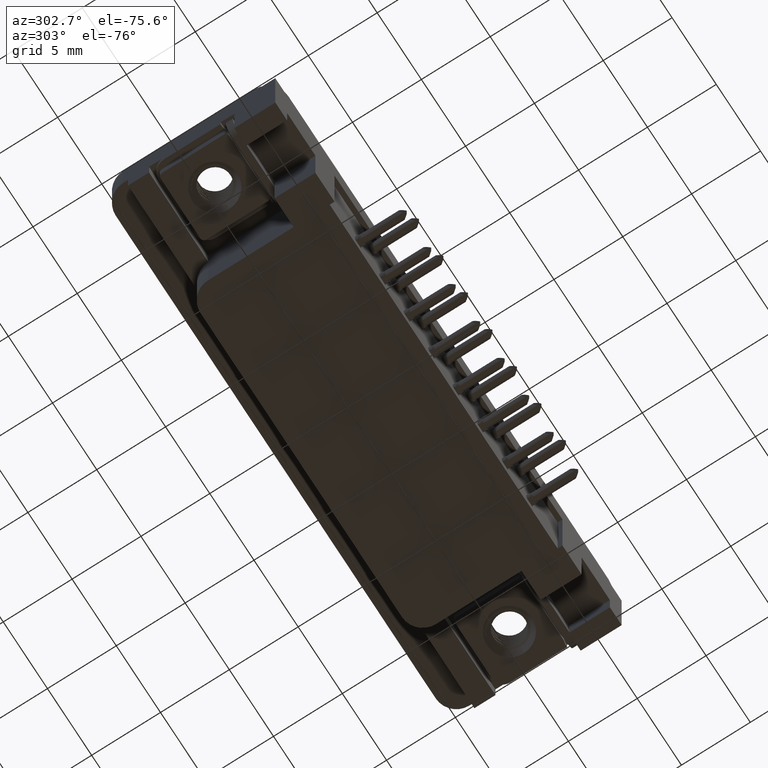
[diagram: clean part render]
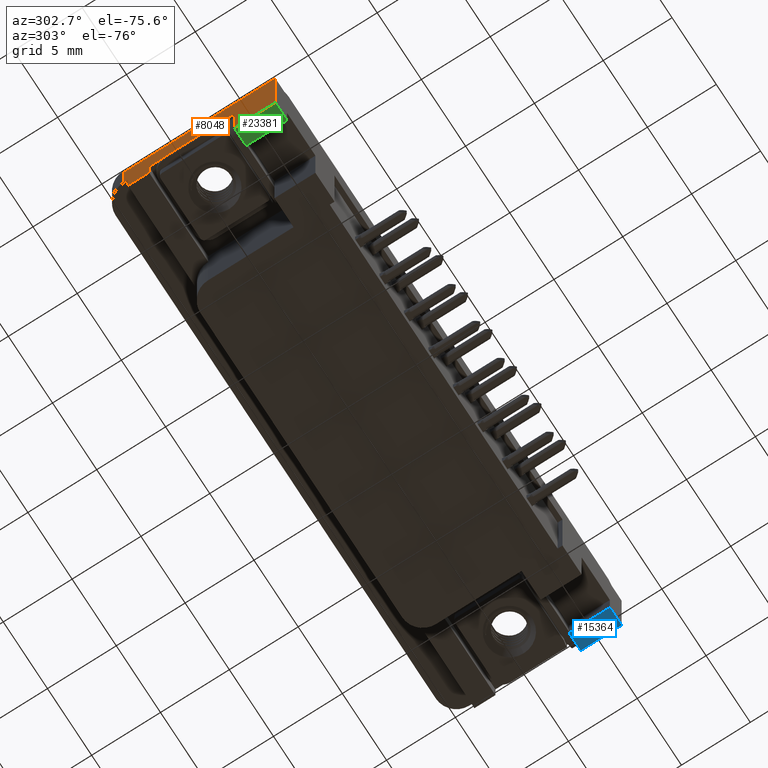
[diagram: same view with three faces highlighted in distinct colors, each labeled with its STEP entity id]
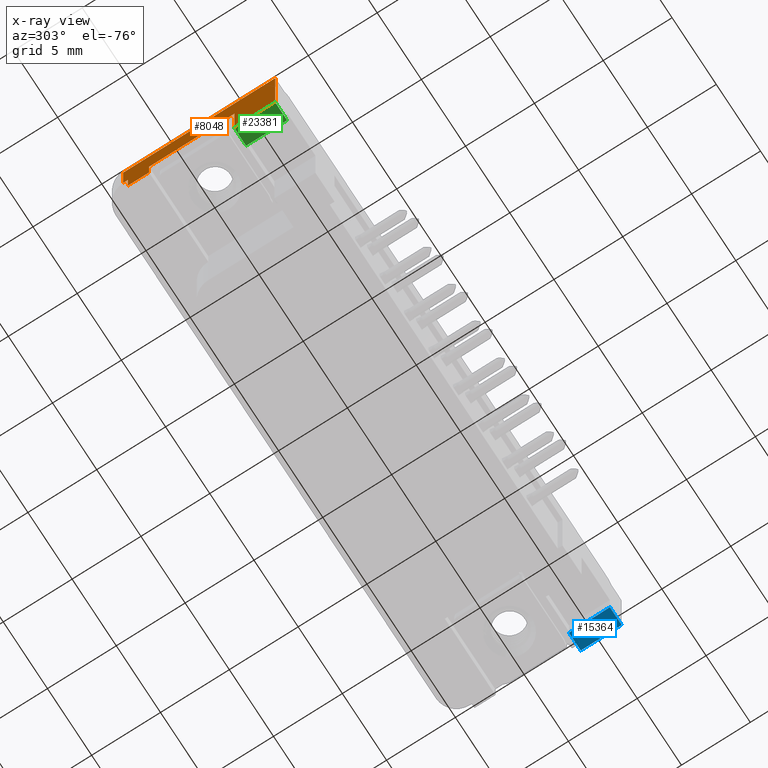
[diagram: x-ray of the same camera — body ghosted, the three highlighted faces saturated]
A machine part, auxiliary view with three faces highlighted in distinct colors.
The next image is the same camera in x-ray (body ghosted, the three faces saturated) — at least one of them is partly hidden behind the body in this view.
Their STEP definitions:

[orange] entity #8048 — the highlighted planar face has unit normal (-1, 0, 0).
#562 = EDGE_CURVE ( 'NONE', #15646, #15994, #20119, .T. ) ;
#832 = EDGE_CURVE ( 'NONE', #11943, #6821, #24443, .T. ) ;
#1000 = DIRECTION ( 'NONE',  ( 0.0000000000000000000, 0.0000000000000000000, 1.000000000000000000 ) ) ;
#1222 = DIRECTION ( 'NONE',  ( -1.000000000000000000, 0.0000000000000000000, 0.0000000000000000000 ) ) ;
#1429 = CARTESIAN_POINT ( 'NONE',  ( -2.934999999999993400, -6.275000000000000400, 0.0000000000000000000 ) ) ;
#2407 = LINE ( 'NONE', #7412, #22467 ) ;
#2725 = DIRECTION ( 'NONE',  ( -0.0000000000000000000, 1.000000000000000000, -0.0000000000000000000 ) ) ;
#2744 = ORIENTED_EDGE ( 'NONE', *, *, #20433, .F. ) ;
#3067 = CARTESIAN_POINT ( 'NONE',  ( -2.934999999999990300, 2.894999999999999600, -2.500000000000000000 ) ) ;
#3965 = EDGE_CURVE ( 'NONE', #11943, #16794, #2407, .T. ) ;
#4085 = DIRECTION ( 'NONE',  ( -0.0000000000000000000, -0.0000000000000000000, 1.000000000000000000 ) ) ;
#4242 = ORIENTED_EDGE ( 'NONE', *, *, #24561, .T. ) ;
#4613 = LINE ( 'NONE', #20964, #19988 ) ;
#4764 = LINE ( 'NONE', #16582, #20140 ) ;
#4982 = LINE ( 'NONE', #24105, #15623 ) ;
#5024 = VECTOR ( 'NONE', #7478, 1000.000000000000000 ) ;
#5245 = VERTEX_POINT ( 'NONE', #23336 ) ;
#5948 = CARTESIAN_POINT ( 'NONE',  ( -2.934999999999990300, -3.294999999999999900, -6.000000000000000000 ) ) ;
#6267 = CARTESIAN_POINT ( 'NONE',  ( -2.934999999999993400, -3.295000000000000400, -2.500000000000000000 ) ) ;
#6399 = CARTESIAN_POINT ( 'NONE',  ( -2.934999999999990300, 4.424999999999998900, -3.899999999999999900 ) ) ;
#6821 = VERTEX_POINT ( 'NONE', #8844 ) ;
#7412 = CARTESIAN_POINT ( 'NONE',  ( -2.934999999999990300, 2.894999999999999600, -3.899999999999999900 ) ) ;
#7478 = DIRECTION ( 'NONE',  ( -0.0000000000000000000, -1.000000000000000000, -0.0000000000000000000 ) ) ;
#8048 = ADVANCED_FACE ( 'NONE', ( #21111 ), #23084, .T. ) ;
#8569 = CARTESIAN_POINT ( 'NONE',  ( -2.934999999999990300, -3.294999999999999900, -8.400000000000000400 ) ) ;
#8794 = ORIENTED_EDGE ( 'NONE', *, *, #3965, .T. ) ;
#8844 = CARTESIAN_POINT ( 'NONE',  ( -2.934999999999990300, 4.424999999999998900, -3.899999999999999900 ) ) ;
#9327 = ORIENTED_EDGE ( 'NONE', *, *, #20947, .T. ) ;
#9457 = VECTOR ( 'NONE', #24993, 1000.000000000000000 ) ;
#9996 = VERTEX_POINT ( 'NONE', #6267 ) ;
#10409 = ORIENTED_EDGE ( 'NONE', *, *, #16740, .F. ) ;
#10416 = EDGE_CURVE ( 'NONE', #22559, #13562, #18169, .T. ) ;
#10518 = AXIS2_PLACEMENT_3D ( 'NONE', #17078, #1222, #15221 ) ;
#10692 = CARTESIAN_POINT ( 'NONE',  ( -2.934999999999990300, -6.275000000000000400, -6.000000000000000000 ) ) ;
#11089 = CARTESIAN_POINT ( 'NONE',  ( -2.934999999999990300, -6.495000000000000100, -6.000000000000000000 ) ) ;
#11943 = VERTEX_POINT ( 'NONE', #13892 ) ;
#12147 = DIRECTION ( 'NONE',  ( 0.0000000000000000000, 0.0000000000000000000, 1.000000000000000000 ) ) ;
#12706 = ORIENTED_EDGE ( 'NONE', *, *, #832, .F. ) ;
#12819 = VECTOR ( 'NONE', #25057, 1000.000000000000000 ) ;
#13562 = VERTEX_POINT ( 'NONE', #5948 ) ;
#13892 = CARTESIAN_POINT ( 'NONE',  ( -2.934999999999990300, 2.894999999999999600, -3.899999999999999900 ) ) ;
#14194 = LINE ( 'NONE', #8569, #18891 ) ;
#14326 = LINE ( 'NONE', #6399, #19025 ) ;
#14564 = DIRECTION ( 'NONE',  ( -0.0000000000000000000, -1.000000000000000000, -0.0000000000000000000 ) ) ;
#14595 = DIRECTION ( 'NONE',  ( -0.0000000000000000000, -0.0000000000000000000, 1.000000000000000000 ) ) ;
#14724 = ORIENTED_EDGE ( 'NONE', *, *, #10416, .F. ) ;
#15078 = VECTOR ( 'NONE', #2725, 1000.000000000000000 ) ;
#15193 = ORIENTED_EDGE ( 'NONE', *, *, #22433, .F. ) ;
#15221 = DIRECTION ( 'NONE',  ( 0.0000000000000000000, 0.0000000000000000000, 1.000000000000000000 ) ) ;
#15623 = VECTOR ( 'NONE', #12147, 1000.000000000000000 ) ;
#15646 = VERTEX_POINT ( 'NONE', #16095 ) ;
#15994 = VERTEX_POINT ( 'NONE', #21085 ) ;
#16095 = CARTESIAN_POINT ( 'NONE',  ( -2.934999999999993400, 4.775000000000000400, -2.500000000000000000 ) ) ;
#16555 = CARTESIAN_POINT ( 'NONE',  ( -2.934999999999993400, -6.275000000000000400, -2.500000000000000000 ) ) ;
#16582 = CARTESIAN_POINT ( 'NONE',  ( -2.934999999999993400, -6.275000000000000400, -2.500000000000000000 ) ) ;
#16740 = EDGE_CURVE ( 'NONE', #15646, #5245, #4613, .T. ) ;
#16766 = CARTESIAN_POINT ( 'NONE',  ( -2.934999999999990300, 4.424999999999998900, -3.899999999999999900 ) ) ;
#16794 = VERTEX_POINT ( 'NONE', #3067 ) ;
#17061 = EDGE_CURVE ( 'NONE', #6821, #15994, #14326, .T. ) ;
#17078 = CARTESIAN_POINT ( 'NONE',  ( -2.934999999999993400, -6.275000000000000400, -2.500000000000000000 ) ) ;
#17949 = CARTESIAN_POINT ( 'NONE',  ( -2.934999999999993400, -6.275000000000000400, 0.0000000000000000000 ) ) ;
#18169 = LINE ( 'NONE', #11089, #12819 ) ;
#18891 = VECTOR ( 'NONE', #14595, 1000.000000000000000 ) ;
#19025 = VECTOR ( 'NONE', #22431, 1000.000000000000000 ) ;
#19933 = VERTEX_POINT ( 'NONE', #17949 ) ;
#19982 = ORIENTED_EDGE ( 'NONE', *, *, #562, .T. ) ;
#19988 = VECTOR ( 'NONE', #1000, 1000.000000000000000 ) ;
#20119 = LINE ( 'NONE', #16555, #9457 ) ;
#20140 = VECTOR ( 'NONE', #14564, 1000.000000000000000 ) ;
#20433 = EDGE_CURVE ( 'NONE', #13562, #9996, #14194, .T. ) ;
#20947 = EDGE_CURVE ( 'NONE', #16794, #9996, #4764, .T. ) ;
#20959 = ORIENTED_EDGE ( 'NONE', *, *, #17061, .F. ) ;
#20964 = CARTESIAN_POINT ( 'NONE',  ( -2.934999999999993400, 4.775000000000000400, -2.500000000000000000 ) ) ;
#21085 = CARTESIAN_POINT ( 'NONE',  ( -2.934999999999993400, 4.424999999999998900, -2.500000000000000000 ) ) ;
#21111 = FACE_OUTER_BOUND ( 'NONE', #25662, .T. ) ;
#21637 = LINE ( 'NONE', #1429, #5024 ) ;
#22431 = DIRECTION ( 'NONE',  ( -0.0000000000000000000, -0.0000000000000000000, 1.000000000000000000 ) ) ;
#22433 = EDGE_CURVE ( 'NONE', #5245, #19933, #21637, .T. ) ;
#22467 = VECTOR ( 'NONE', #4085, 1000.000000000000000 ) ;
#22559 = VERTEX_POINT ( 'NONE', #10692 ) ;
#23084 = PLANE ( 'NONE',  #10518 ) ;
#23336 = CARTESIAN_POINT ( 'NONE',  ( -2.934999999999993400, 4.775000000000000400, 0.0000000000000000000 ) ) ;
#24105 = CARTESIAN_POINT ( 'NONE',  ( -2.934999999999993400, -6.275000000000000400, -2.500000000000000000 ) ) ;
#24443 = LINE ( 'NONE', #16766, #15078 ) ;
#24561 = EDGE_CURVE ( 'NONE', #22559, #19933, #4982, .T. ) ;
#24993 = DIRECTION ( 'NONE',  ( -0.0000000000000000000, -1.000000000000000000, -0.0000000000000000000 ) ) ;
#25057 = DIRECTION ( 'NONE',  ( -0.0000000000000000000, 1.000000000000000000, -0.0000000000000000000 ) ) ;
#25662 = EDGE_LOOP ( 'NONE', ( #14724, #4242, #15193, #10409, #19982, #20959, #12706, #8794, #9327, #2744 ) ) ;

[blue] entity #15364 — the highlighted planar face has unit normal (0, 0, 1).
#456 = ORIENTED_EDGE ( 'NONE', *, *, #4659, .T. ) ;
#1999 = LINE ( 'NONE', #10189, #7346 ) ;
#2732 = VERTEX_POINT ( 'NONE', #7529 ) ;
#3927 = VERTEX_POINT ( 'NONE', #4864 ) ;
#4582 = EDGE_CURVE ( 'NONE', #3927, #25219, #11778, .T. ) ;
#4659 = EDGE_CURVE ( 'NONE', #2732, #3927, #25847, .T. ) ;
#4864 = CARTESIAN_POINT ( 'NONE',  ( 34.92000000000002300, -6.275000000000000400, -6.000000000000004400 ) ) ;
#5246 = CARTESIAN_POINT ( 'NONE',  ( -2.934999999999995200, -6.275000000000000400, -5.999999999999979600 ) ) ;
#5304 = DIRECTION ( 'NONE',  ( -1.000000000000000000, 0.0000000000000000000, 6.497091670325208400E-016 ) ) ;
#6450 = VECTOR ( 'NONE', #15369, 1000.000000000000000 ) ;
#6607 = VERTEX_POINT ( 'NONE', #18308 ) ;
#7346 = VECTOR ( 'NONE', #24175, 1000.000000000000000 ) ;
#7529 = CARTESIAN_POINT ( 'NONE',  ( 36.25500000000000300, -6.275000000000000400, -6.000000000000005300 ) ) ;
#9313 = AXIS2_PLACEMENT_3D ( 'NONE', #20766, #24739, #12764 ) ;
#10189 = CARTESIAN_POINT ( 'NONE',  ( 36.25500000000000300, -6.495000000000000100, -6.000000000000005300 ) ) ;
#10523 = VECTOR ( 'NONE', #5304, 1000.000000000000000 ) ;
#10762 = PLANE ( 'NONE',  #9313 ) ;
#10940 = CARTESIAN_POINT ( 'NONE',  ( 36.25500000000000300, -3.294999999999999900, -6.000000000000005300 ) ) ;
#11778 = LINE ( 'NONE', #15715, #6450 ) ;
#12764 = DIRECTION ( 'NONE',  ( 1.000000000000000000, 0.0000000000000000000, -6.497091670325208400E-016 ) ) ;
#13122 = CARTESIAN_POINT ( 'NONE',  ( 34.92000000000002300, -3.294999999999999900, -6.000000000000004400 ) ) ;
#13124 = LINE ( 'NONE', #10940, #15031 ) ;
#15031 = VECTOR ( 'NONE', #22939, 1000.000000000000000 ) ;
#15364 = ADVANCED_FACE ( 'NONE', ( #23580 ), #10762, .F. ) ;
#15369 = DIRECTION ( 'NONE',  ( -0.0000000000000000000, 1.000000000000000000, -0.0000000000000000000 ) ) ;
#15715 = CARTESIAN_POINT ( 'NONE',  ( 34.92000000000002300, -6.495000000000000100, -6.000000000000004400 ) ) ;
#18308 = CARTESIAN_POINT ( 'NONE',  ( 36.25500000000000300, -3.294999999999999900, -6.000000000000005300 ) ) ;
#19489 = EDGE_CURVE ( 'NONE', #2732, #6607, #1999, .T. ) ;
#20766 = CARTESIAN_POINT ( 'NONE',  ( 36.25500000000000300, -6.495000000000000100, -6.000000000000005300 ) ) ;
#21251 = EDGE_LOOP ( 'NONE', ( #456, #23481, #21492, #21823 ) ) ;
#21492 = ORIENTED_EDGE ( 'NONE', *, *, #24052, .T. ) ;
#21823 = ORIENTED_EDGE ( 'NONE', *, *, #19489, .F. ) ;
#22939 = DIRECTION ( 'NONE',  ( 1.000000000000000000, -0.0000000000000000000, -6.497091670325207400E-016 ) ) ;
#23481 = ORIENTED_EDGE ( 'NONE', *, *, #4582, .T. ) ;
#23580 = FACE_OUTER_BOUND ( 'NONE', #21251, .T. ) ;
#24052 = EDGE_CURVE ( 'NONE', #25219, #6607, #13124, .T. ) ;
#24175 = DIRECTION ( 'NONE',  ( -0.0000000000000000000, 1.000000000000000000, -0.0000000000000000000 ) ) ;
#24739 = DIRECTION ( 'NONE',  ( 6.497091670325208400E-016, 0.0000000000000000000, 1.000000000000000000 ) ) ;
#25219 = VERTEX_POINT ( 'NONE', #13122 ) ;
#25847 = LINE ( 'NONE', #5246, #10523 ) ;

[green] entity #23381 — the highlighted planar face has unit normal (0, 0, 1).
#1139 = DIRECTION ( 'NONE',  ( 1.000000000000000000, 0.0000000000000000000, 0.0000000000000000000 ) ) ;
#3129 = FACE_OUTER_BOUND ( 'NONE', #20167, .T. ) ;
#5169 = VECTOR ( 'NONE', #1139, 1000.000000000000000 ) ;
#5788 = LINE ( 'NONE', #25424, #5169 ) ;
#5948 = CARTESIAN_POINT ( 'NONE',  ( -2.934999999999990300, -3.294999999999999900, -6.000000000000000000 ) ) ;
#6429 = PLANE ( 'NONE',  #9424 ) ;
#6837 = EDGE_CURVE ( 'NONE', #13562, #10263, #5788, .T. ) ;
#7966 = CARTESIAN_POINT ( 'NONE',  ( -1.600000000000000800, -3.294999999999999900, -6.000000000000000000 ) ) ;
#8056 = LINE ( 'NONE', #18614, #18060 ) ;
#8168 = LINE ( 'NONE', #21245, #8783 ) ;
#8476 = DIRECTION ( 'NONE',  ( 1.000000000000000000, 0.0000000000000000000, 0.0000000000000000000 ) ) ;
#8646 = DIRECTION ( 'NONE',  ( -1.000000000000000000, 0.0000000000000000000, 0.0000000000000000000 ) ) ;
#8783 = VECTOR ( 'NONE', #21413, 1000.000000000000000 ) ;
#8923 = CARTESIAN_POINT ( 'NONE',  ( -1.600000000000000800, -6.275000000000000400, -6.000000000000000000 ) ) ;
#9424 = AXIS2_PLACEMENT_3D ( 'NONE', #16431, #20457, #8476 ) ;
#10263 = VERTEX_POINT ( 'NONE', #7966 ) ;
#10416 = EDGE_CURVE ( 'NONE', #22559, #13562, #18169, .T. ) ;
#10692 = CARTESIAN_POINT ( 'NONE',  ( -2.934999999999990300, -6.275000000000000400, -6.000000000000000000 ) ) ;
#11089 = CARTESIAN_POINT ( 'NONE',  ( -2.934999999999990300, -6.495000000000000100, -6.000000000000000000 ) ) ;
#12819 = VECTOR ( 'NONE', #25057, 1000.000000000000000 ) ;
#13562 = VERTEX_POINT ( 'NONE', #5948 ) ;
#15587 = ORIENTED_EDGE ( 'NONE', *, *, #6837, .T. ) ;
#16431 = CARTESIAN_POINT ( 'NONE',  ( -2.934999999999990300, -6.495000000000000100, -6.000000000000000000 ) ) ;
#17456 = EDGE_CURVE ( 'NONE', #20255, #22559, #8056, .T. ) ;
#18060 = VECTOR ( 'NONE', #8646, 1000.000000000000000 ) ;
#18169 = LINE ( 'NONE', #11089, #12819 ) ;
#18614 = CARTESIAN_POINT ( 'NONE',  ( -2.934999999999993400, -6.275000000000000400, -6.000000000000000000 ) ) ;
#19224 = ORIENTED_EDGE ( 'NONE', *, *, #23659, .F. ) ;
#20167 = EDGE_LOOP ( 'NONE', ( #20994, #23496, #15587, #19224 ) ) ;
#20255 = VERTEX_POINT ( 'NONE', #8923 ) ;
#20457 = DIRECTION ( 'NONE',  ( -0.0000000000000000000, 0.0000000000000000000, 1.000000000000000000 ) ) ;
#20994 = ORIENTED_EDGE ( 'NONE', *, *, #17456, .T. ) ;
#21245 = CARTESIAN_POINT ( 'NONE',  ( -1.600000000000000800, -6.495000000000000100, -6.000000000000000000 ) ) ;
#21413 = DIRECTION ( 'NONE',  ( -0.0000000000000000000, 1.000000000000000000, -0.0000000000000000000 ) ) ;
#22559 = VERTEX_POINT ( 'NONE', #10692 ) ;
#23381 = ADVANCED_FACE ( 'NONE', ( #3129 ), #6429, .F. ) ;
#23496 = ORIENTED_EDGE ( 'NONE', *, *, #10416, .T. ) ;
#23659 = EDGE_CURVE ( 'NONE', #20255, #10263, #8168, .T. ) ;
#25057 = DIRECTION ( 'NONE',  ( -0.0000000000000000000, 1.000000000000000000, -0.0000000000000000000 ) ) ;
#25424 = CARTESIAN_POINT ( 'NONE',  ( -2.934999999999990300, -3.294999999999999900, -6.000000000000000000 ) ) ;